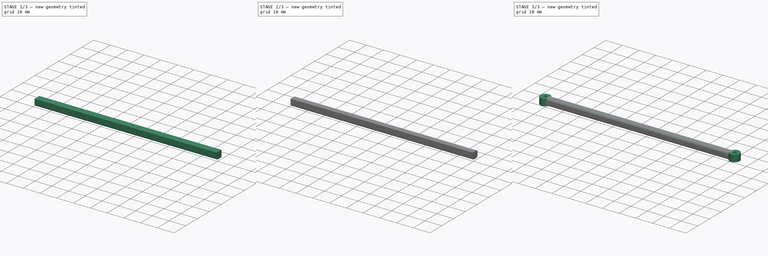
[diagram: build sequence overview — one tinted view per stage of 3, left to right]
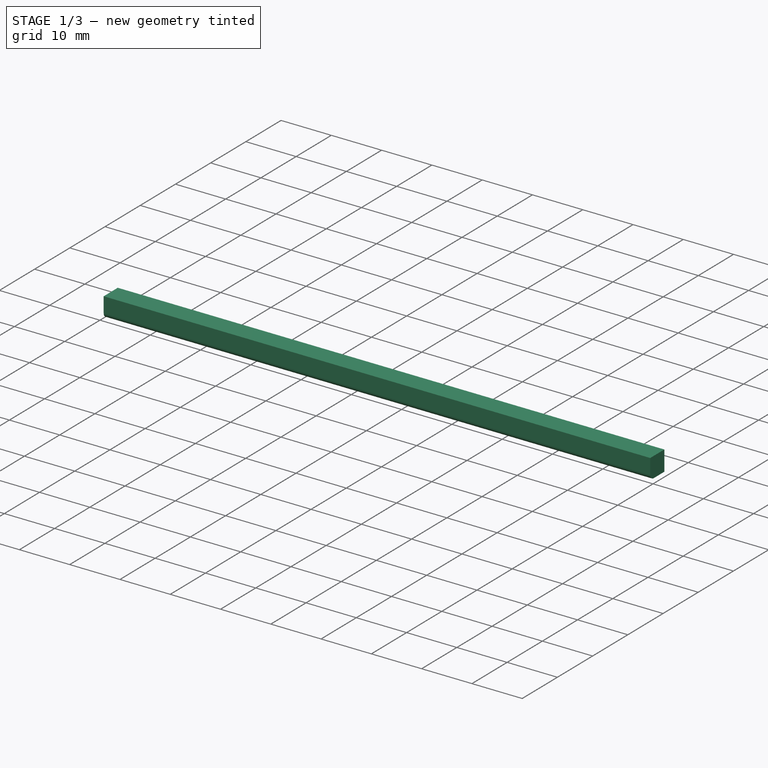
[diagram: stage 1 of 3 — iso view after this stage's code; geometry added in this stage tinted green]
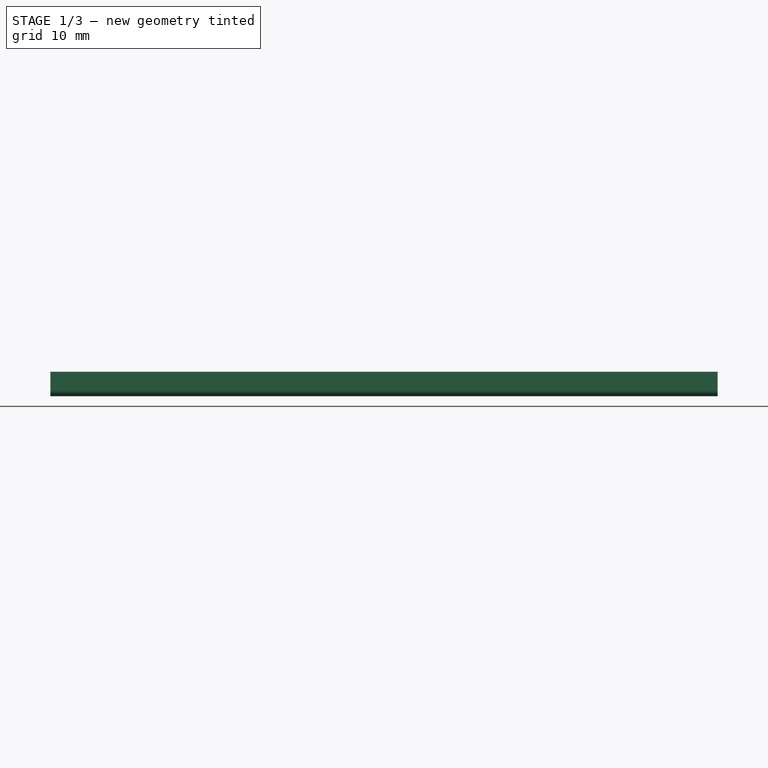
[diagram: stage 1 of 3 — front view after this stage's code; geometry added in this stage tinted green]
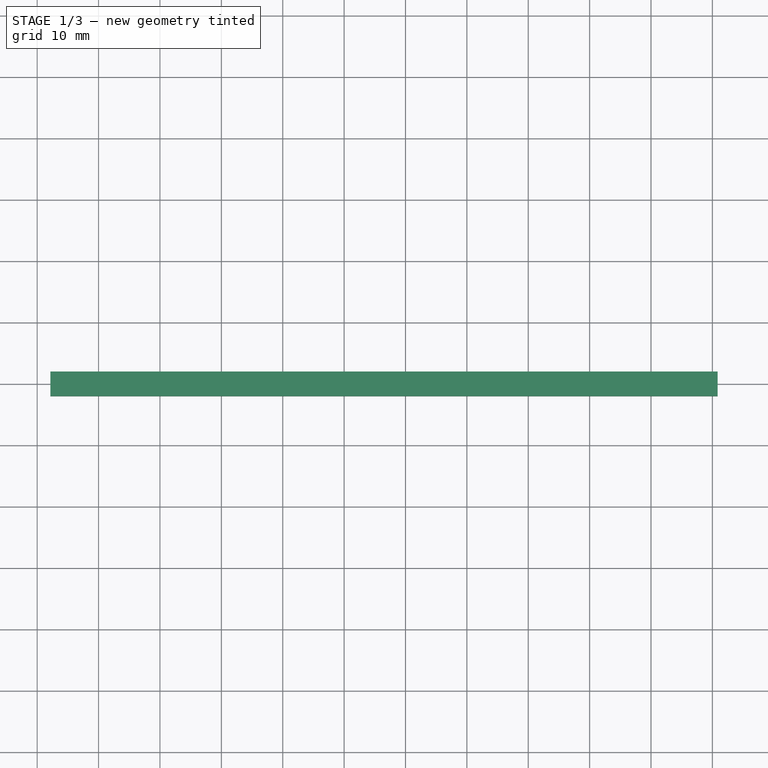
[diagram: stage 1 of 3 — top view after this stage's code; geometry added in this stage tinted green]
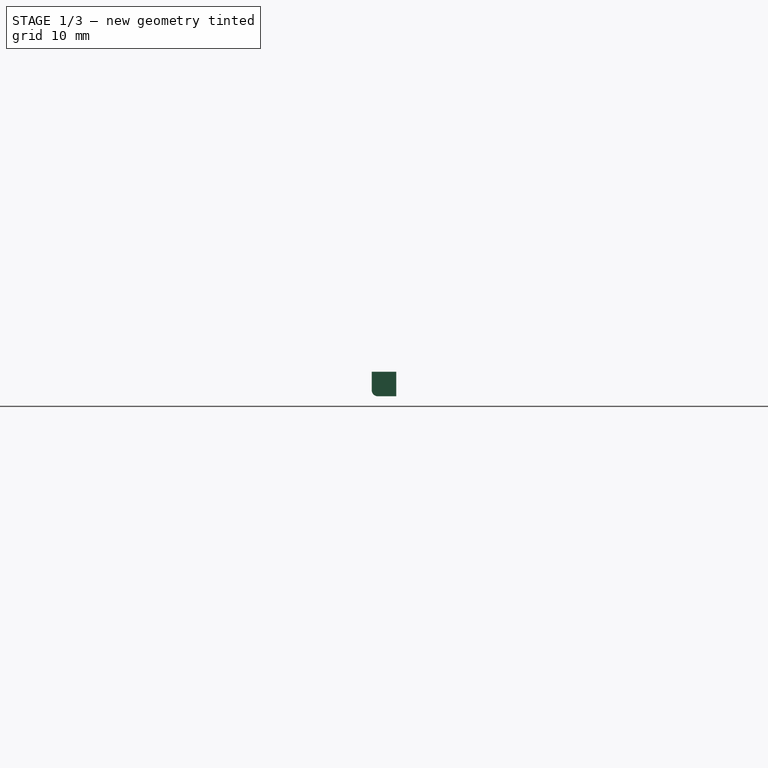
[diagram: stage 1 of 3 — right view after this stage's code; geometry added in this stage tinted green]
FCSTD DOCUMENT  (FreeCAD 0.14R3700 (Git))
Label: bielle 113b
License: CC-BY 3.0
LicenseURL: http://creativecommons.org/licenses/by/3.0/
objects: PartDesign::Fillet×4, Sketcher::SketchObject×2, PartDesign::Pad×2
note: 10 computed .brp shape members not serialized (recipe doc carries the construction recipe); baked Part::Feature solids carry a one-line shape summary decoded from their .brp

FEATURE [Sketcher::SketchObject] Sketch001
  Placement = pos=(0,0,0) rot=(1,0,0;1.5708rad)
  sketch-geometry (4):
    g0: LineSegment StartX=2.15 StartY=4 StartZ=0 EndX=110.85 EndY=4 EndZ=0
    g1: LineSegment StartX=110.85 StartY=4 StartZ=0 EndX=110.85 EndY=0 EndZ=0
    g2: LineSegment StartX=110.85 StartY=0 StartZ=0 EndX=2.15 EndY=0 EndZ=0
    g3: LineSegment StartX=2.15 StartY=0 StartZ=0 EndX=2.15 EndY=4 EndZ=0
  constraints (12):
    c: Coincident(g0,g1)
    c: Coincident(g1,g2)
    c: Coincident(g2,g3)
    c: Coincident(g3,g0)
    c: Horizontal(g0)
    c: Horizontal(g2)
    c: Vertical(g1)
    c: Vertical(g3)
    c: DistanceY(g0,g1) = -4
    c: DistanceY(g-1,g2) = 0
    c: DistanceX(g-1,g0) = 2.15
    c: DistanceX(g1,g2) = -108.7
FEATURE [PartDesign::Pad] Pad001
  Length = 4
  Length2 = 5
  Midplane = true
  Placement = pos=(0,0,0) rot=(1,0,0;1.5708rad)
  Sketch = -> Sketch001
  Type = 0
FEATURE [PartDesign::Fillet] Fillet
  Base = -> Pad001 [Edge10]
  Placement = pos=(0,0,0) rot=(1,0,0;1.5708rad)
  Radius = 1
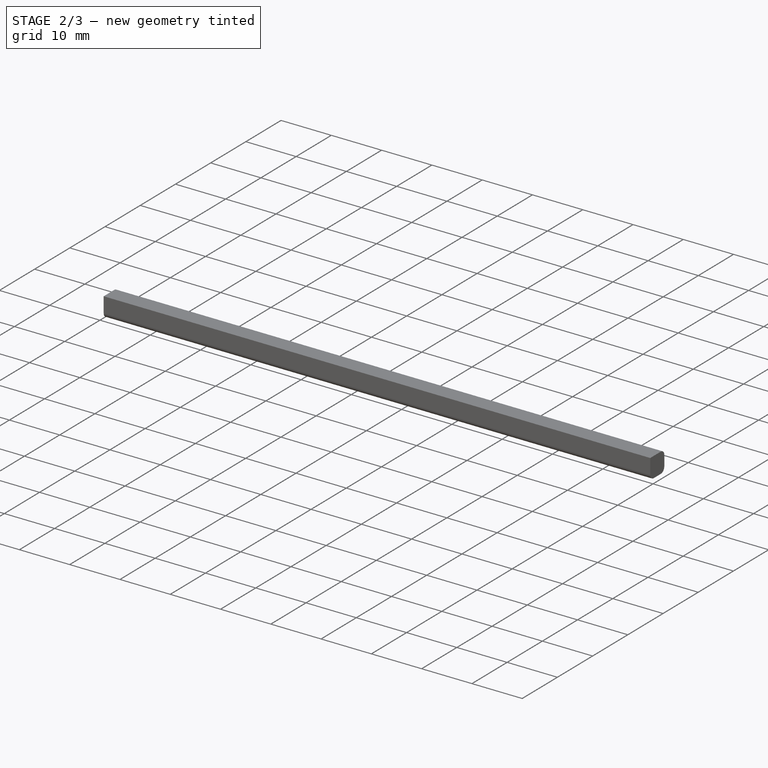
[diagram: stage 2 of 3 — iso view after this stage's code; geometry added in this stage tinted green]
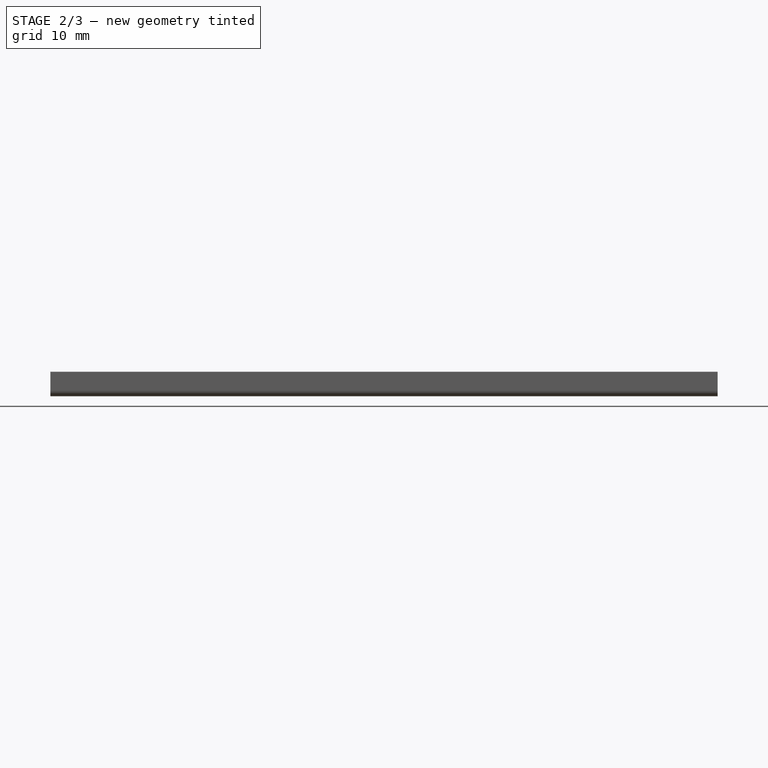
[diagram: stage 2 of 3 — front view after this stage's code; geometry added in this stage tinted green]
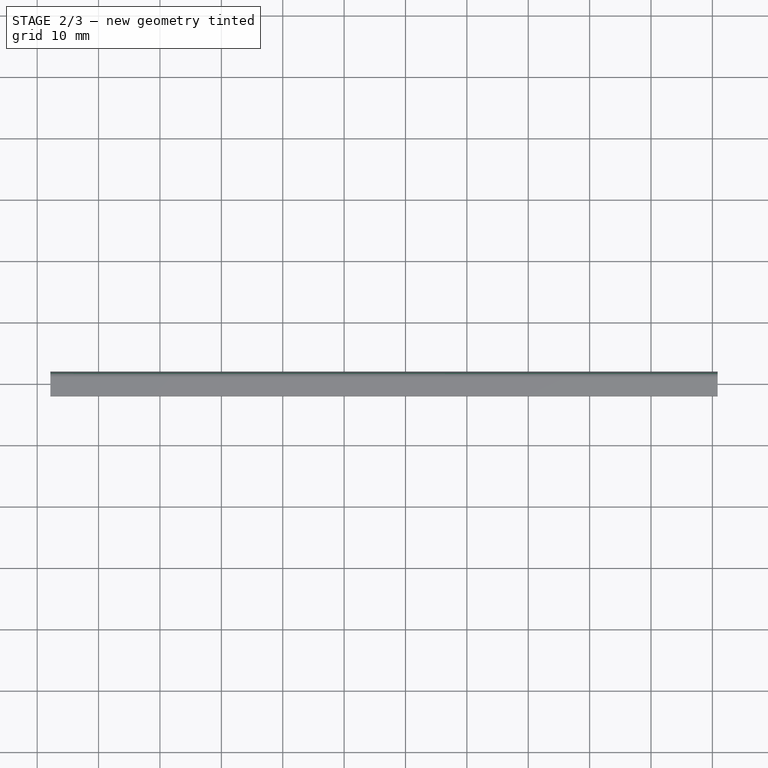
[diagram: stage 2 of 3 — top view after this stage's code; geometry added in this stage tinted green]
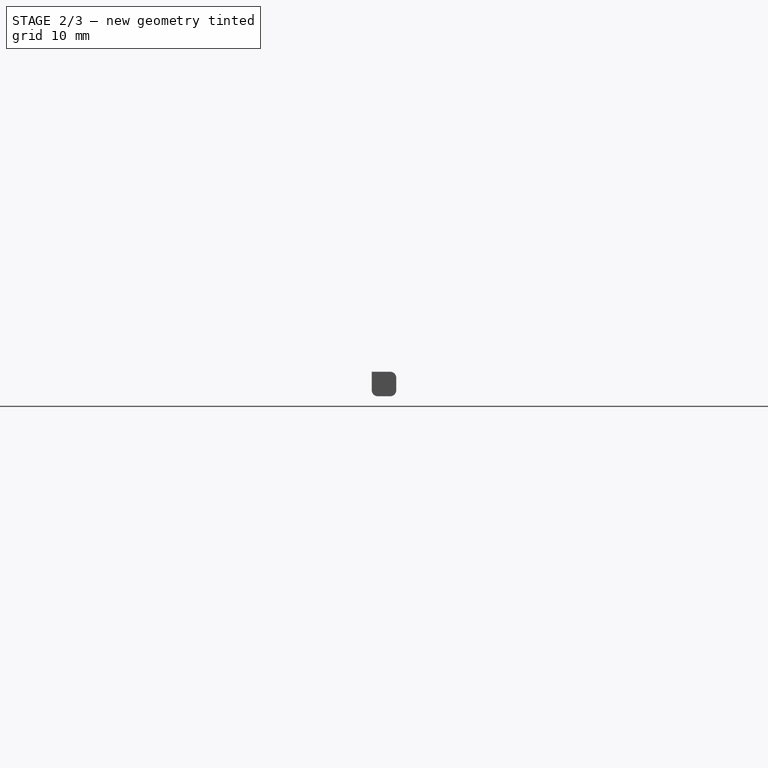
[diagram: stage 2 of 3 — right view after this stage's code; geometry added in this stage tinted green]
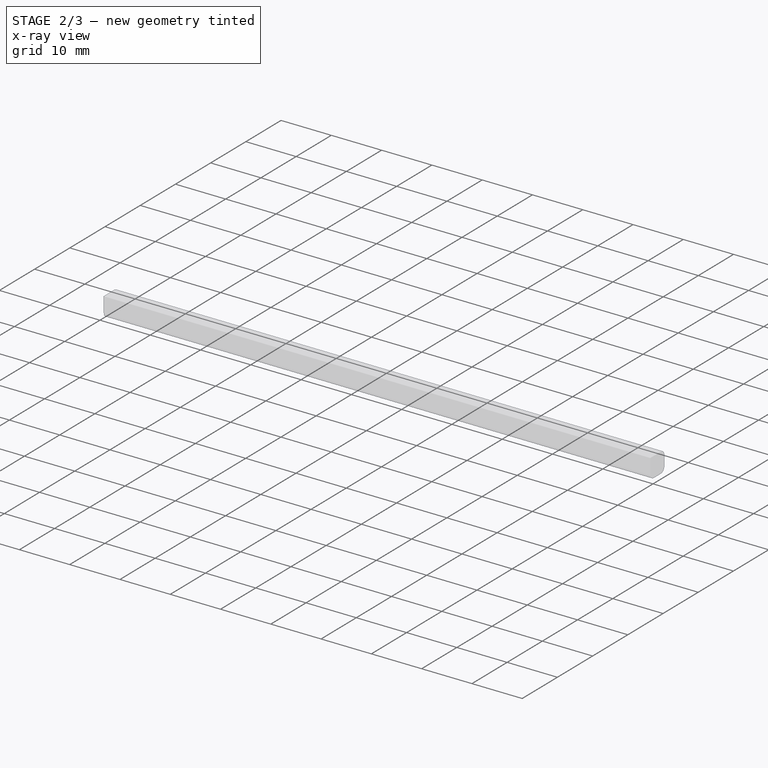
[diagram: stage 2 of 3 — x-ray composite at the iso view; earlier geometry ghosted, this stage's added geometry solid]
FEATURE [PartDesign::Fillet] Fillet001
  Base = -> Fillet [Edge7]
  Placement = pos=(0,0,0) rot=(1,0,0;1.5708rad)
  Radius = 1
FEATURE [PartDesign::Fillet] Fillet002
  Base = -> Fillet001 [Edge14]
  Placement = pos=(0,0,0) rot=(1,0,0;1.5708rad)
  Radius = 1
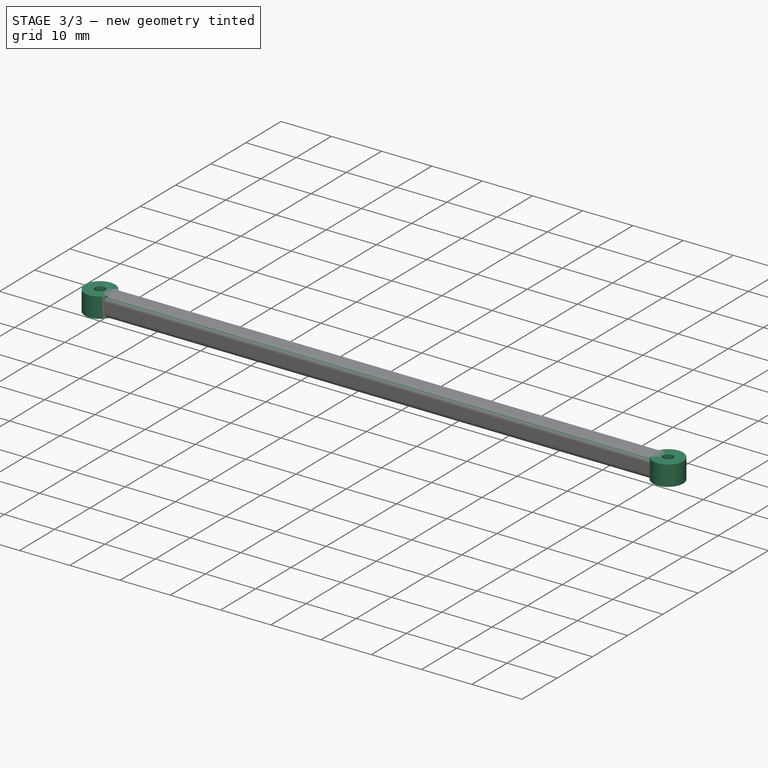
[diagram: stage 3 of 3 — iso view after this stage's code; geometry added in this stage tinted green]
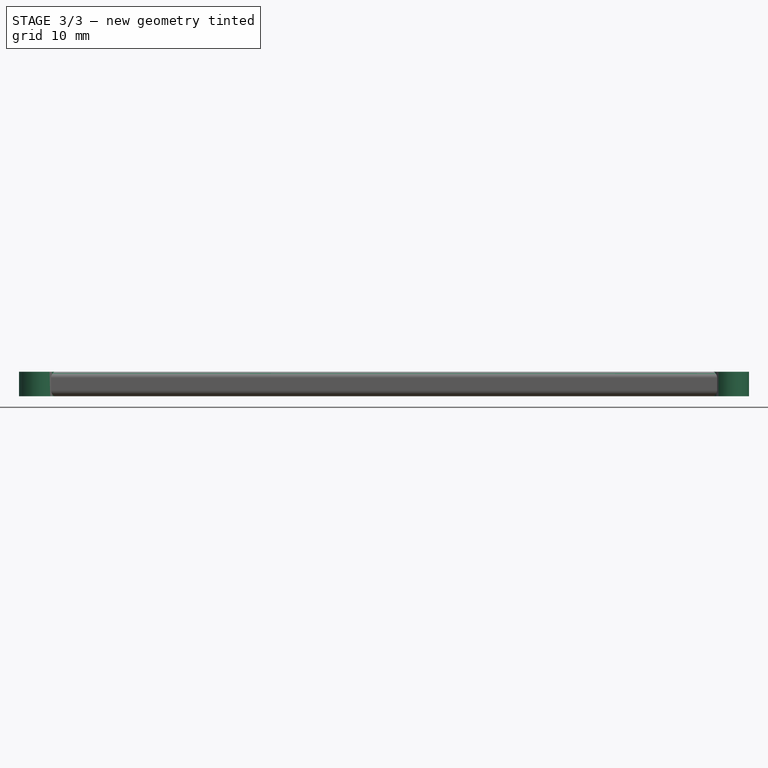
[diagram: stage 3 of 3 — front view after this stage's code; geometry added in this stage tinted green]
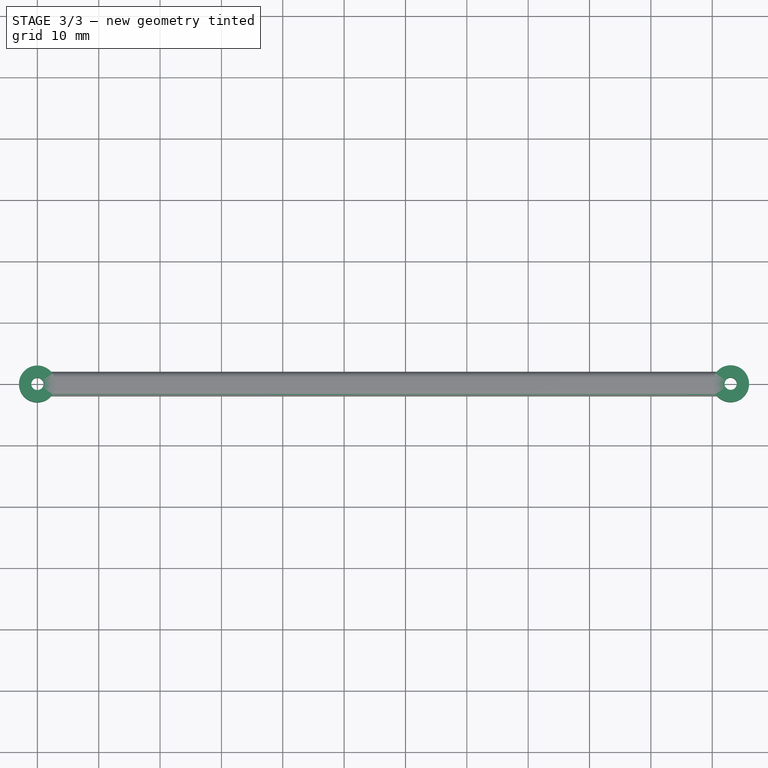
[diagram: stage 3 of 3 — top view after this stage's code; geometry added in this stage tinted green]
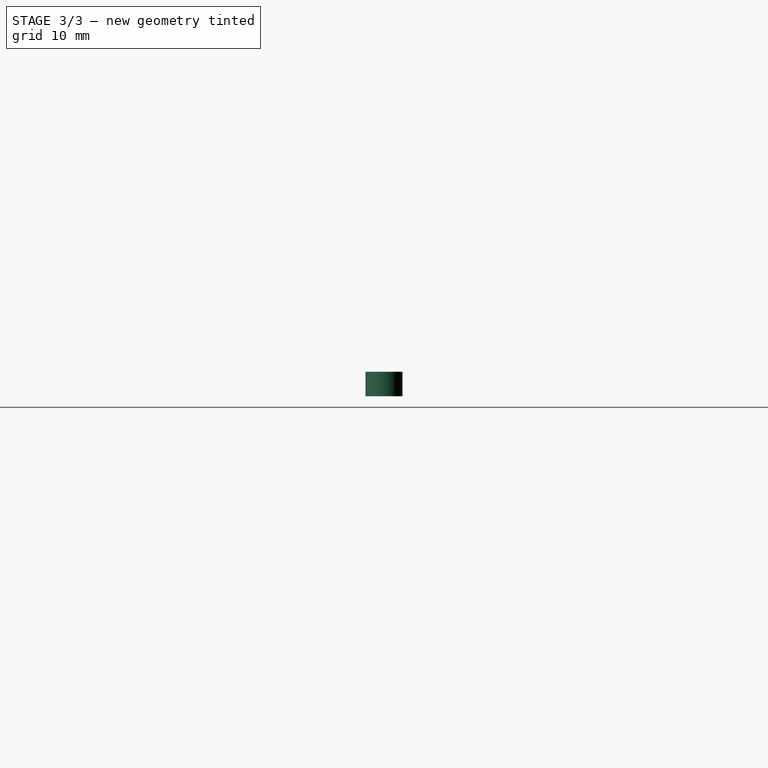
[diagram: stage 3 of 3 — right view after this stage's code; geometry added in this stage tinted green]
FEATURE [Sketcher::SketchObject] Sketch
  sketch-geometry (4):
    g0: Circle CenterX=0 CenterY=0 CenterZ=0 NormalX=0 NormalY=0 NormalZ=1 Radius=3
    g1: Circle CenterX=0 CenterY=0 CenterZ=0 NormalX=0 NormalY=0 NormalZ=1 Radius=1
    g2: Circle CenterX=113 CenterY=0.0396151 CenterZ=0 NormalX=0 NormalY=0 NormalZ=1 Radius=3
    g3: Circle CenterX=113 CenterY=0.0396151 CenterZ=0 NormalX=0 NormalY=0 NormalZ=1 Radius=1
  constraints (8):
    c: Coincident(g1,g0)
    c: Coincident(g0,g-1)
    c: Radius(g1) = 1
    c: Radius(g0) = 3
    c: Radius(g3) = 1
    c: Coincident(g3,g2)
    c: Radius(g2) = 3
    c: DistanceX(g-1,g2) = 113
FEATURE [PartDesign::Pad] Pad
  Length = 4
  Length2 = 5
  Sketch = -> Sketch
  Type = 0
FEATURE [PartDesign::Fillet] Fillet003
  Base = -> Fillet002 [Edge16]
  Placement = pos=(0,0,0) rot=(1,0,0;1.5708rad)
  Radius = 1
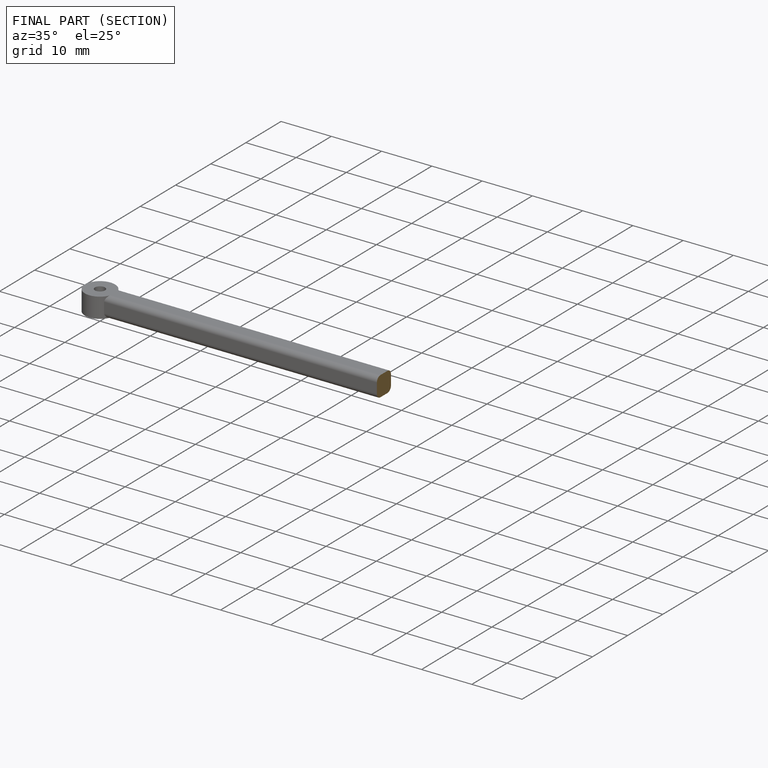
[diagram: finished part — half-section view (interior)]
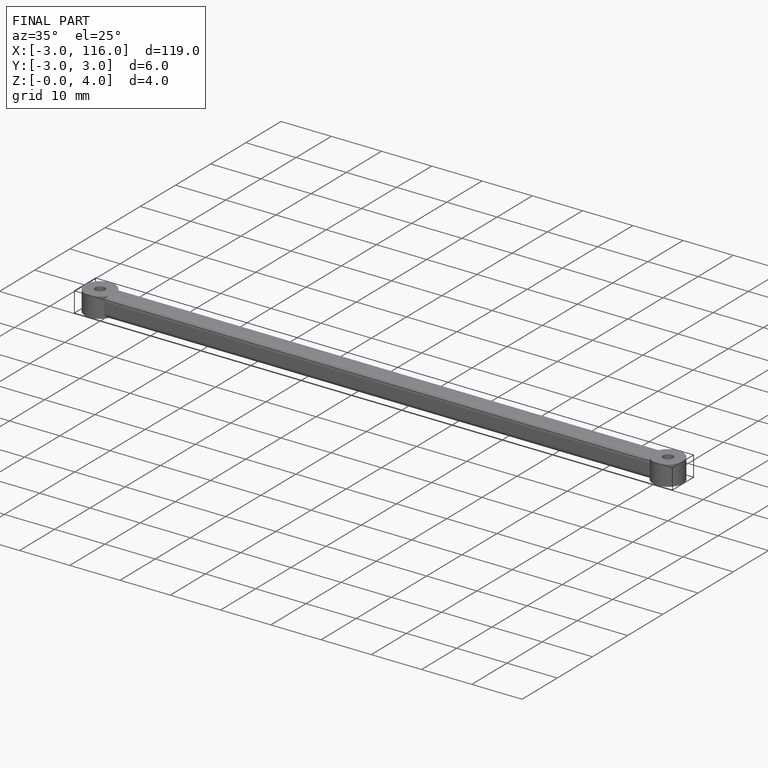
[diagram: finished part — iso view with bounding-box wireframe]
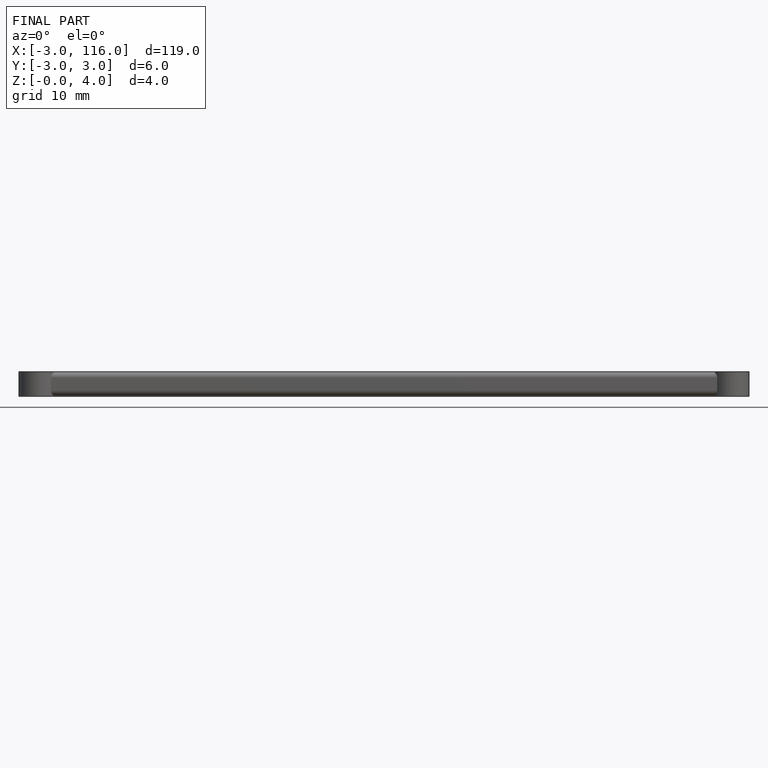
[diagram: finished part — front view with bounding-box wireframe]
